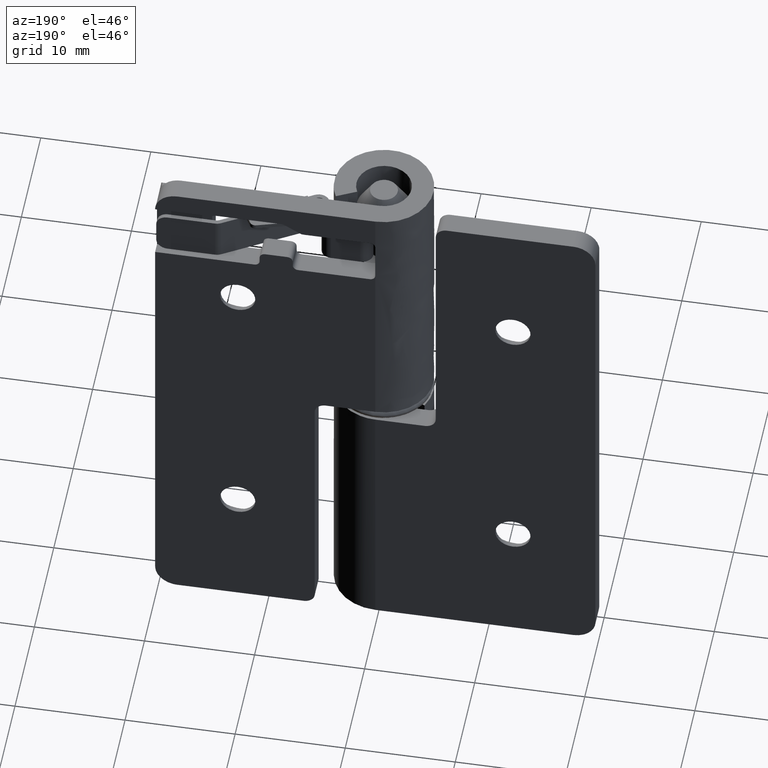
[diagram: clean part render]
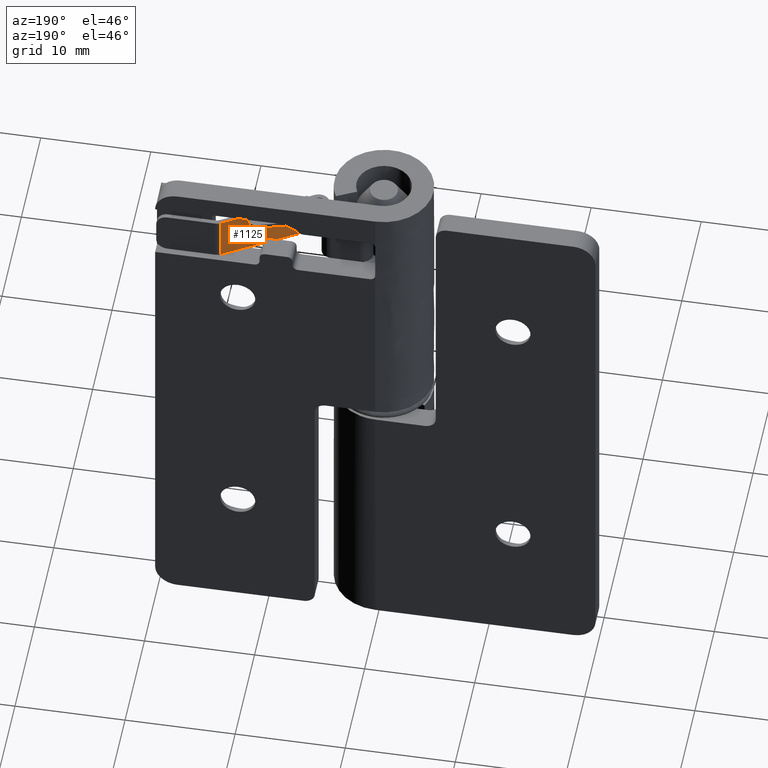
[diagram: same view with one face highlighted and labeled with its STEP entity id]
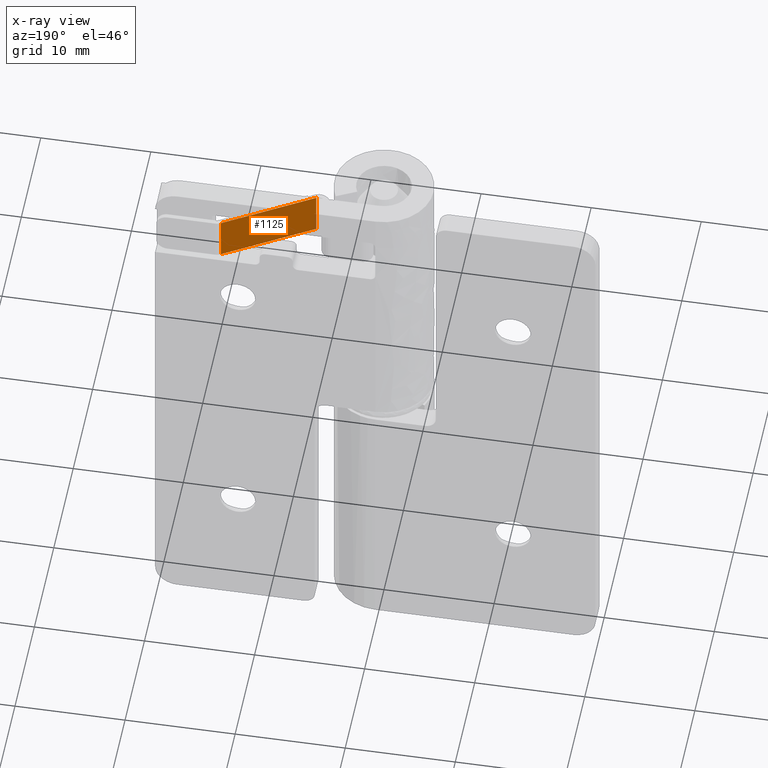
[diagram: x-ray of the same camera — body ghosted, the highlighted face saturated]
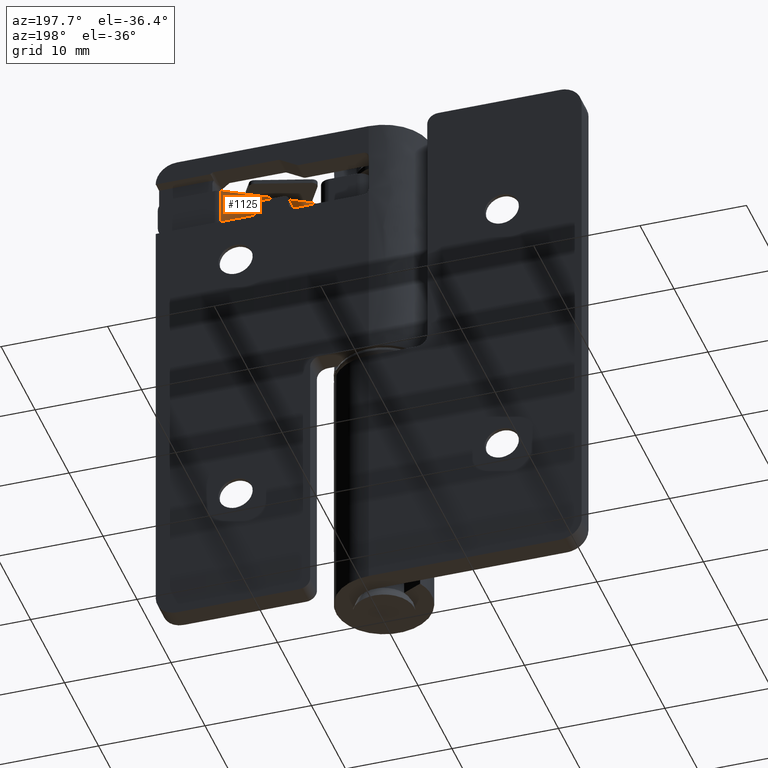
[diagram: same view with one face highlighted and labeled with its STEP entity id]
A machine part, auxiliary view. The second image highlights one B-rep face of the part: STEP entity #1125.
The next image is the same camera in x-ray: the body ghosted, the highlighted face saturated — about 1% of this face is hidden behind the body in this view.
A second angle (auxiliary view) of the same face is appended — the face is thin or edge-on in the first view.
In plain terms, the highlighted face is a freeform B-spline surface patch.
Its self-contained STEP definition (entity closure, byte-faithful):
#182=CARTESIAN_POINT('',(12.130139481946300,2.584780134810655,46.499999999999098));
#183=VERTEX_POINT('',#182);
#320=CARTESIAN_POINT('',(14.148823458121960,3.763553885882575,46.499999999999098));
#321=VERTEX_POINT('',#320);
#335=CARTESIAN_POINT('',(14.148823458121960,3.763553885882575,46.499999999999098));
#336=CARTESIAN_POINT('',(12.130139481946300,2.584780134810655,46.499999999999098));
#337=QUASI_UNIFORM_CURVE('',1,(#335,#336),.UNSPECIFIED.,.F.,.U.);
#338=EDGE_CURVE('',#321,#183,#337,.T.);
#382=CARTESIAN_POINT('',(14.148823458121960,3.763553885882575,42.499999999999012));
#383=VERTEX_POINT('',#382);
#397=CARTESIAN_POINT('',(14.148823458121960,3.763553885882575,46.499999999999098));
#398=CARTESIAN_POINT('',(14.148823458121960,3.763553885882575,42.499999999999012));
#399=QUASI_UNIFORM_CURVE('',1,(#397,#398),.UNSPECIFIED.,.F.,.U.);
#400=EDGE_CURVE('',#321,#383,#399,.T.);
#639=CARTESIAN_POINT('',(6.948816166650830,-0.440759272034942,46.499999999999098));
#640=VERTEX_POINT('',#639);
#641=CARTESIAN_POINT('',(12.130139481946300,2.584780134810655,46.499999999999098));
#642=CARTESIAN_POINT('',(6.948816166650830,-0.440759272034942,46.499999999999098));
#643=QUASI_UNIFORM_CURVE('',1,(#641,#642),.UNSPECIFIED.,.F.,.U.);
#644=EDGE_CURVE('',#183,#640,#643,.T.);
#748=CARTESIAN_POINT('',(6.302553940675301,-0.818132331552889,42.499999999999012));
#749=VERTEX_POINT('',#748);
#750=CARTESIAN_POINT('',(14.148823458121960,3.763553885882575,42.499999999999012));
#751=CARTESIAN_POINT('',(6.302553940675301,-0.818132331552889,42.499999999999012));
#752=QUASI_UNIFORM_CURVE('',1,(#750,#751),.UNSPECIFIED.,.F.,.U.);
#753=EDGE_CURVE('',#383,#749,#752,.T.);
#1085=CARTESIAN_POINT('',(6.302553940675301,-0.818132331552889,46.499999999999098));
#1086=VERTEX_POINT('',#1085);
#1100=CARTESIAN_POINT('',(6.302553940675301,-0.818132331552889,46.499999999999098));
#1101=CARTESIAN_POINT('',(6.302553940675301,-0.818132331552889,42.499999999999012));
#1102=QUASI_UNIFORM_CURVE('',1,(#1100,#1101),.UNSPECIFIED.,.F.,.U.);
#1103=EDGE_CURVE('',#1086,#749,#1102,.T.);
#1108=CARTESIAN_POINT('',(5.910632793486429,-1.046987549233588,42.300200007751783));
#1109=CARTESIAN_POINT('',(14.540744815764180,3.992409226453682,42.300200007751783));
#1110=CARTESIAN_POINT('',(5.910632793486429,-1.046987549233588,46.699800099534691));
#1111=CARTESIAN_POINT('',(14.540744815764180,3.992409226453682,46.699800099534691));
#1112=B_SPLINE_SURFACE_WITH_KNOTS('',1,1,((#1108,#1110),(#1109,#1111)),.UNSPECIFIED.,.F.,.F.,.U.,(2,2),(2,2),(0.0,9.993715694368646),(0.0,4.399600091782915),.UNSPECIFIED.);
#1113=ORIENTED_EDGE('',*,*,#338,.F.);
#1114=ORIENTED_EDGE('',*,*,#400,.T.);
#1115=ORIENTED_EDGE('',*,*,#753,.T.);
#1116=ORIENTED_EDGE('',*,*,#1103,.F.);
#1117=CARTESIAN_POINT('',(6.948816166650830,-0.440759272034942,46.499999999999098));
#1118=CARTESIAN_POINT('',(6.302553940675301,-0.818132331552889,46.499999999999098));
#1119=QUASI_UNIFORM_CURVE('',1,(#1117,#1118),.UNSPECIFIED.,.F.,.U.);
#1120=EDGE_CURVE('',#640,#1086,#1119,.T.);
#1121=ORIENTED_EDGE('',*,*,#1120,.F.);
#1122=ORIENTED_EDGE('',*,*,#644,.F.);
#1123=EDGE_LOOP('',(#1113,#1114,#1115,#1116,#1121,#1122));
#1124=FACE_OUTER_BOUND('',#1123,.T.);
#1125=ADVANCED_FACE('',(#1124),#1112,.F.);